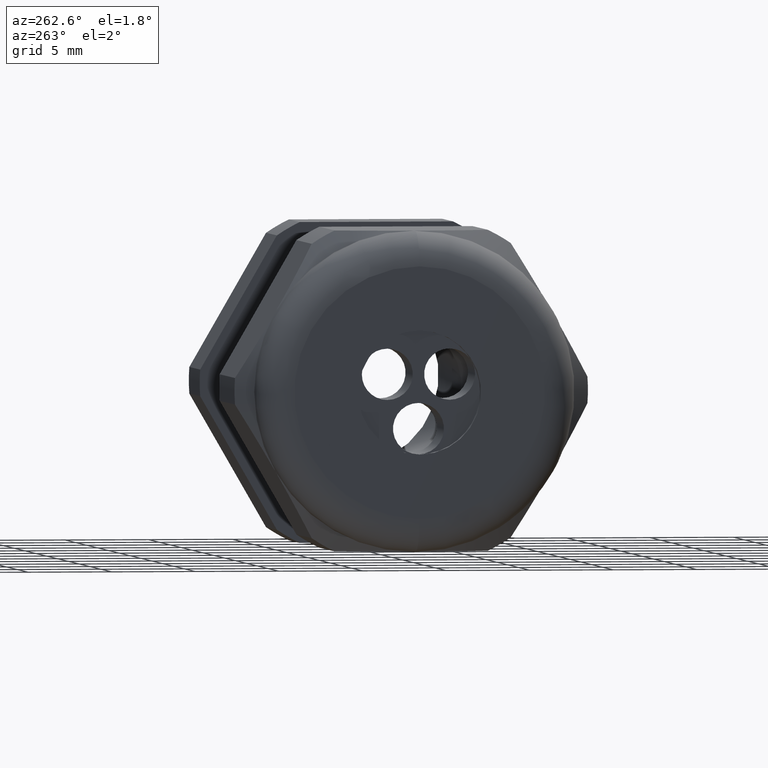
[diagram: clean part render]
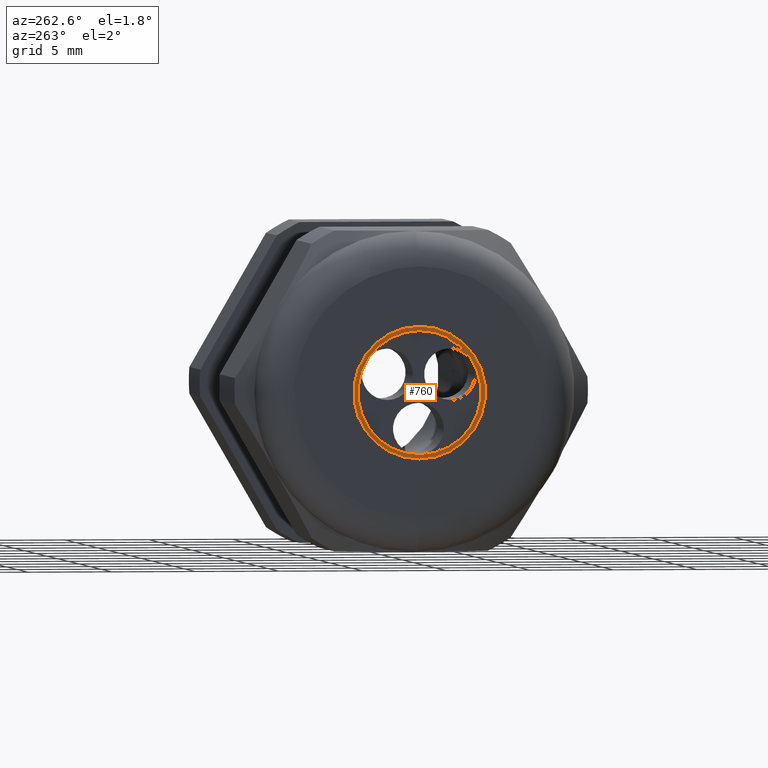
[diagram: same view with one face highlighted and labeled with its STEP entity id]
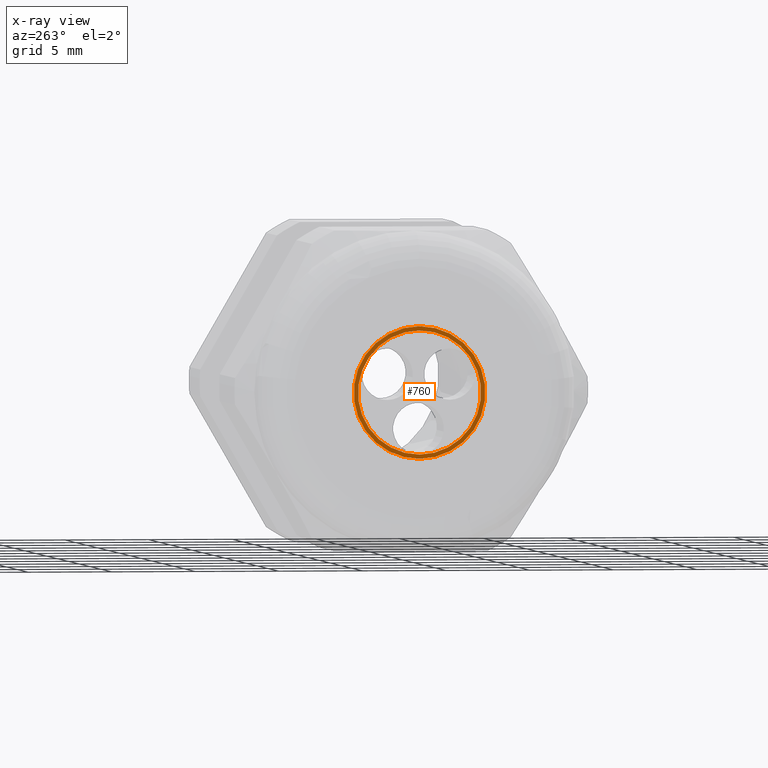
[diagram: x-ray of the same camera — body ghosted, the highlighted face saturated]
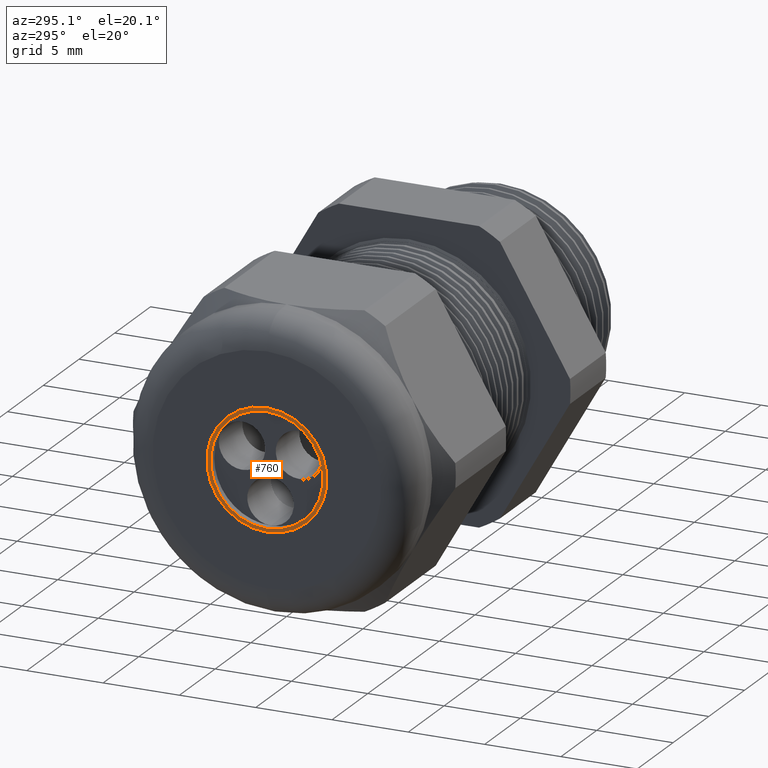
[diagram: same view with one face highlighted and labeled with its STEP entity id]
A machine part, auxiliary view. The second image highlights one B-rep face of the part: STEP entity #760.
The next image is the same camera in x-ray: the body ghosted, the highlighted face saturated — about 0% of this face is hidden behind the body in this view.
A second angle (auxiliary view) of the same face is appended — the face is thin or edge-on in the first view.
In plain terms, the highlighted planar face has unit normal (-1, 0, 0).
Its self-contained STEP definition (entity closure, byte-faithful):
#759 = ORIENTED_EDGE ( 'NONE', *, *, #992, .T. ) ;
#760 = ADVANCED_FACE ( 'NONE', ( #2565, #2560 ), #2559, .T. ) ;
#762 = ORIENTED_EDGE ( 'NONE', *, *, #925, .F. ) ;
#763 = EDGE_CURVE ( 'NONE', #926, #923, #2554, .T. ) ;
#764 = EDGE_LOOP ( 'NONE', ( #765, #762 ) ) ;
#765 = ORIENTED_EDGE ( 'NONE', *, *, #763, .F. ) ;
#766 = EDGE_LOOP ( 'NONE', ( #767, #759 ) ) ;
#767 = ORIENTED_EDGE ( 'NONE', *, *, #975, .T. ) ;
#923 = VERTEX_POINT ( 'NONE', #2860 ) ;
#925 = EDGE_CURVE ( 'NONE', #923, #926, #2859, .T. ) ;
#926 = VERTEX_POINT ( 'NONE', #2854 ) ;
#973 = VERTEX_POINT ( 'NONE', #2954 ) ;
#975 = EDGE_CURVE ( 'NONE', #976, #973, #2953, .T. ) ;
#976 = VERTEX_POINT ( 'NONE', #2948 ) ;
#992 = EDGE_CURVE ( 'NONE', #973, #976, #2987, .T. ) ;
#2550 = DIRECTION ( 'NONE',  ( 0.0000000000000000000, 0.0000000000000000000, 1.000000000000000000 ) ) ;
#2551 = DIRECTION ( 'NONE',  ( -1.000000000000000000, 0.0000000000000000000, 0.0000000000000000000 ) ) ;
#2552 = CARTESIAN_POINT ( 'NONE',  ( -1.289999999999999800, 0.0000000000000000000, 0.0000000000000000000 ) ) ;
#2553 = AXIS2_PLACEMENT_3D ( 'NONE', #2552, #2551, #2550 ) ;
#2554 = CIRCLE ( 'NONE', #2553, 0.1449999999999999900 ) ;
#2555 = DIRECTION ( 'NONE',  ( 0.0000000000000000000, 0.0000000000000000000, 1.000000000000000000 ) ) ;
#2556 = DIRECTION ( 'NONE',  ( -1.000000000000000000, 0.0000000000000000000, 0.0000000000000000000 ) ) ;
#2557 = CARTESIAN_POINT ( 'NONE',  ( -1.289999999999999800, 0.0000000000000000000, 0.0000000000000000000 ) ) ;
#2558 = AXIS2_PLACEMENT_3D ( 'NONE', #2557, #2556, #2555 ) ;
#2559 = PLANE ( 'NONE',  #2558 ) ;
#2560 = FACE_OUTER_BOUND ( 'NONE', #766, .T. ) ;
#2565 = FACE_BOUND ( 'NONE', #764, .T. ) ;
#2854 = CARTESIAN_POINT ( 'NONE',  ( -1.289999999999999800, 0.0000000000000000000, 0.1449999999999999900 ) ) ;
#2855 = DIRECTION ( 'NONE',  ( 0.0000000000000000000, 0.0000000000000000000, 1.000000000000000000 ) ) ;
#2856 = DIRECTION ( 'NONE',  ( -1.000000000000000000, 0.0000000000000000000, 0.0000000000000000000 ) ) ;
#2857 = CARTESIAN_POINT ( 'NONE',  ( -1.289999999999999800, 0.0000000000000000000, 0.0000000000000000000 ) ) ;
#2858 = AXIS2_PLACEMENT_3D ( 'NONE', #2857, #2856, #2855 ) ;
#2859 = CIRCLE ( 'NONE', #2858, 0.1449999999999999900 ) ;
#2860 = CARTESIAN_POINT ( 'NONE',  ( -1.289999999999999800, 1.775737858763661900E-017, -0.1449999999999999900 ) ) ;
#2948 = CARTESIAN_POINT ( 'NONE',  ( -1.289999999999999800, 0.0000000000000000000, 0.1550000000000000000 ) ) ;
#2949 = DIRECTION ( 'NONE',  ( 0.0000000000000000000, 0.0000000000000000000, 1.000000000000000000 ) ) ;
#2950 = DIRECTION ( 'NONE',  ( -1.000000000000000000, 0.0000000000000000000, 0.0000000000000000000 ) ) ;
#2951 = CARTESIAN_POINT ( 'NONE',  ( -1.289999999999999800, 0.0000000000000000000, 0.0000000000000000000 ) ) ;
#2952 = AXIS2_PLACEMENT_3D ( 'NONE', #2951, #2950, #2949 ) ;
#2953 = CIRCLE ( 'NONE', #2952, 0.1550000000000000000 ) ;
#2954 = CARTESIAN_POINT ( 'NONE',  ( -1.289999999999999800, 1.898202538678397000E-017, -0.1550000000000000000 ) ) ;
#2983 = DIRECTION ( 'NONE',  ( 0.0000000000000000000, 0.0000000000000000000, 1.000000000000000000 ) ) ;
#2984 = DIRECTION ( 'NONE',  ( -1.000000000000000000, 0.0000000000000000000, 0.0000000000000000000 ) ) ;
#2985 = CARTESIAN_POINT ( 'NONE',  ( -1.289999999999999800, 0.0000000000000000000, 0.0000000000000000000 ) ) ;
#2986 = AXIS2_PLACEMENT_3D ( 'NONE', #2985, #2984, #2983 ) ;
#2987 = CIRCLE ( 'NONE', #2986, 0.1550000000000000000 ) ;